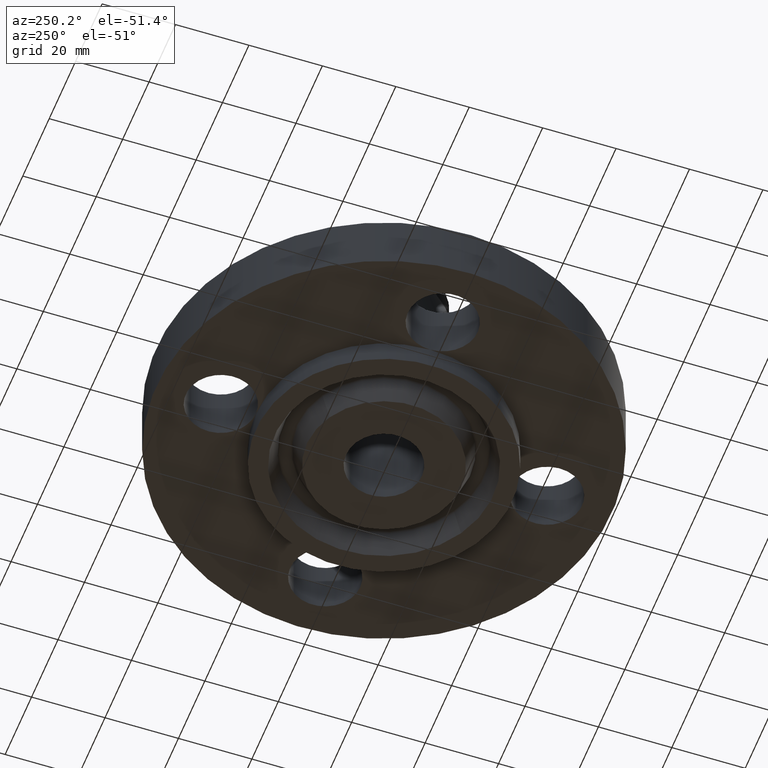
[diagram: clean part render]
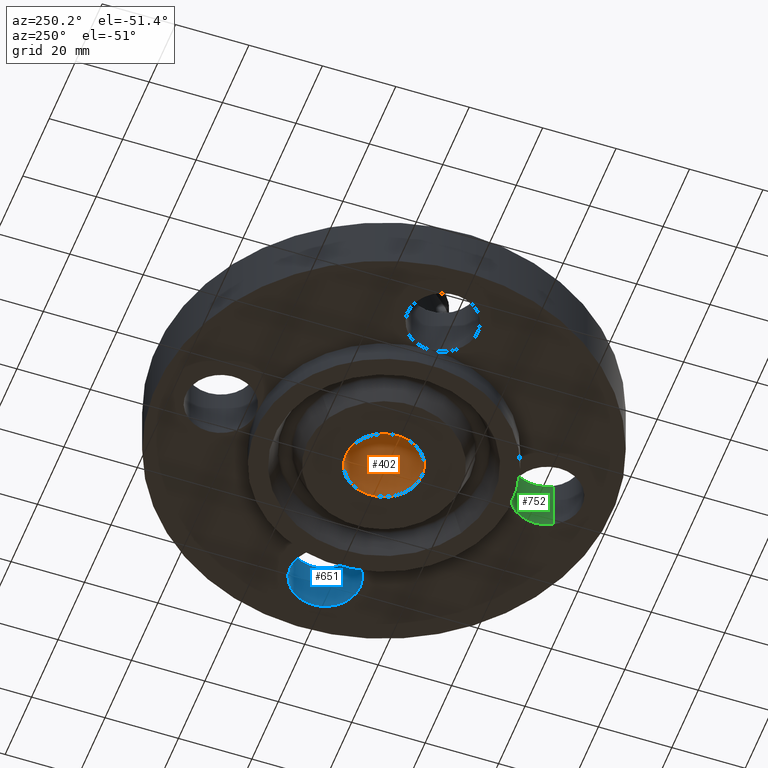
[diagram: same view with three faces highlighted in distinct colors, each labeled with its STEP entity id]
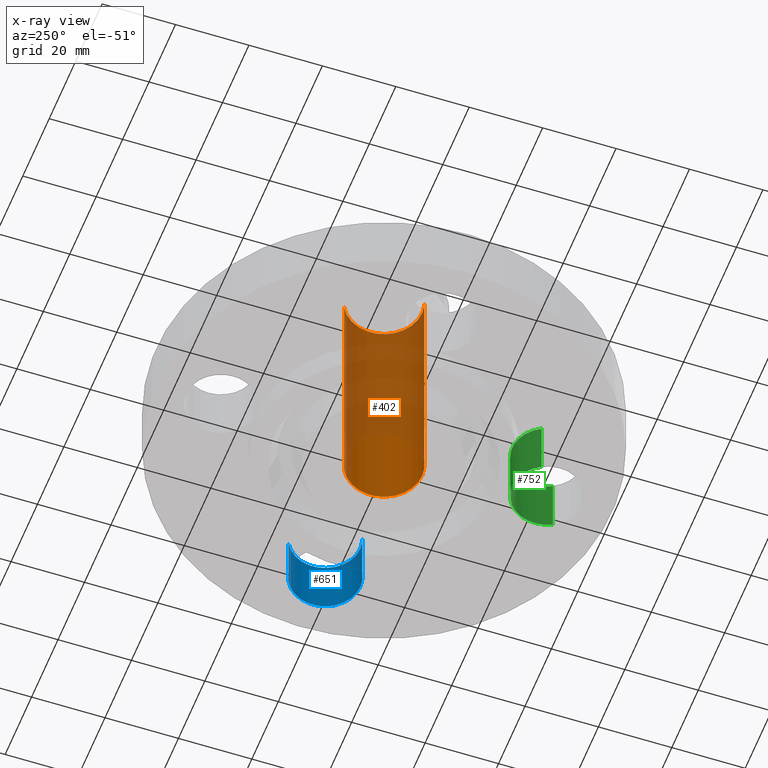
[diagram: x-ray of the same camera — body ghosted, the three highlighted faces saturated]
A machine part, auxiliary view with three faces highlighted in distinct colors.
The next image is the same camera in x-ray (body ghosted, the three faces saturated) — at least one of them is partly hidden behind the body in this view.
Their STEP definitions:

[orange] entity #402 — the highlighted cylindrical surface (partial cylindrical patch) has radius 10.3505 mm, axis along (0, 0, -1).
#366=AXIS2_PLACEMENT_3D('Cylinder Axis2P3D',#363,#364,#365) ;
#370=AXIS2_PLACEMENT_3D('Circle Axis2P3D',#368,#369,$) ;
#386=AXIS2_PLACEMENT_3D('Circle Axis2P3D',#384,#385,$) ;
#363=CARTESIAN_POINT('Axis2P3D Location',(0.,0.,1.065)) ;
#368=CARTESIAN_POINT('Axis2P3D Location',(0.,0.,2.38000000001)) ;
#372=CARTESIAN_POINT('Vertex',(0.195365906982,0.357614893972,2.38000000001)) ;
#374=CARTESIAN_POINT('Vertex',(-0.195365906982,-0.357614893972,2.38000000001)) ;
#377=CARTESIAN_POINT('Line Origine',(0.195365906982,0.357614893972,1.065)) ;
#381=CARTESIAN_POINT('Vertex',(0.195365906982,0.357614893972,-0.250000000001)) ;
#384=CARTESIAN_POINT('Axis2P3D Location',(0.,0.,-0.250000000001)) ;
#388=CARTESIAN_POINT('Vertex',(-0.195365906982,-0.357614893972,-0.250000000001)) ;
#391=CARTESIAN_POINT('Line Origine',(-0.195365906982,-0.357614893972,1.065)) ;
#364=DIRECTION('Axis2P3D Direction',(0.,0.,-0.0393700787402)) ;
#365=DIRECTION('Axis2P3D XDirection',(-0.0188750212049,-0.0345504945626,0.)) ;
#369=DIRECTION('Axis2P3D Direction',(0.,0.,-0.0393700787402)) ;
#378=DIRECTION('Vector Direction',(0.,0.,-0.0393700787402)) ;
#385=DIRECTION('Axis2P3D Direction',(0.,0.,-0.0393700787402)) ;
#392=DIRECTION('Vector Direction',(0.,0.,-0.0393700787402)) ;
#379=VECTOR('Line Direction',#378,0.0393700787402) ;
#393=VECTOR('Line Direction',#392,0.0393700787402) ;
#397=ORIENTED_EDGE('',*,*,#376,.F.) ;
#398=ORIENTED_EDGE('',*,*,#383,.T.) ;
#399=ORIENTED_EDGE('',*,*,#390,.T.) ;
#400=ORIENTED_EDGE('',*,*,#395,.F.) ;
#402=ADVANCED_FACE('PartBody',(#401),#367,.F.) ;
#371=CIRCLE('generated circle',#370,0.407500000002) ;
#387=CIRCLE('generated circle',#386,0.407500000002) ;
#367=CYLINDRICAL_SURFACE('generated cylinder',#366,0.407500000002) ;
#376=EDGE_CURVE('',#373,#375,#371,.T.) ;
#383=EDGE_CURVE('',#373,#382,#380,.T.) ;
#390=EDGE_CURVE('',#382,#389,#387,.T.) ;
#395=EDGE_CURVE('',#375,#389,#394,.T.) ;
#396=EDGE_LOOP('',(#397,#398,#399,#400)) ;
#401=FACE_OUTER_BOUND('',#396,.T.) ;
#380=LINE('Line',#377,#379) ;
#394=LINE('Line',#391,#393) ;
#373=VERTEX_POINT('',#372) ;
#375=VERTEX_POINT('',#374) ;
#382=VERTEX_POINT('',#381) ;
#389=VERTEX_POINT('',#388) ;

[blue] entity #651 — the highlighted cylindrical surface (partial cylindrical patch) has radius 9.525 mm, axis along (0, -0, -1).
#571=AXIS2_PLACEMENT_3D('Circle Axis2P3D',#569,#570,$) ;
#624=AXIS2_PLACEMENT_3D('Cylinder Axis2P3D',#621,#622,#623) ;
#642=AXIS2_PLACEMENT_3D('Circle Axis2P3D',#640,#641,$) ;
#566=CARTESIAN_POINT('Vertex',(1.57021542303,-0.32909346071,0.)) ;
#569=CARTESIAN_POINT('Axis2P3D Location',(1.75000000001,-2.79741234551E-016,0.)) ;
#573=CARTESIAN_POINT('Vertex',(1.92978457698,0.32909346071,0.)) ;
#621=CARTESIAN_POINT('Axis2P3D Location',(1.75000000001,-1.72584639625E-016,0.616062992128)) ;
#626=CARTESIAN_POINT('Line Origine',(1.92978457698,0.32909346071,0.310000000001)) ;
#630=CARTESIAN_POINT('Vertex',(1.92978457698,0.32909346071,0.620000000002)) ;
#633=CARTESIAN_POINT('Line Origine',(1.57021542303,-0.32909346071,0.310000000001)) ;
#637=CARTESIAN_POINT('Vertex',(1.57021542303,-0.32909346071,0.620000000002)) ;
#640=CARTESIAN_POINT('Axis2P3D Location',(1.75000000001,-1.72584639625E-016,0.620000000002)) ;
#570=DIRECTION('Axis2P3D Direction',(0.,0.,-0.0393700787402)) ;
#622=DIRECTION('Axis2P3D Direction',(0.,-0.,-0.0393700787402)) ;
#623=DIRECTION('Axis2P3D XDirection',(-0.0188750212049,-0.0345504945626,0.)) ;
#627=DIRECTION('Vector Direction',(0.,0.,-0.0393700787402)) ;
#634=DIRECTION('Vector Direction',(0.,0.,-0.0393700787402)) ;
#641=DIRECTION('Axis2P3D Direction',(0.,-0.,-0.0393700787402)) ;
#628=VECTOR('Line Direction',#627,0.0393700787402) ;
#635=VECTOR('Line Direction',#634,0.0393700787402) ;
#646=ORIENTED_EDGE('',*,*,#632,.F.) ;
#647=ORIENTED_EDGE('',*,*,#575,.T.) ;
#648=ORIENTED_EDGE('',*,*,#639,.T.) ;
#649=ORIENTED_EDGE('',*,*,#644,.F.) ;
#651=ADVANCED_FACE('PartBody',(#650),#625,.F.) ;
#572=CIRCLE('generated circle',#571,0.375000000001) ;
#643=CIRCLE('generated circle',#642,0.375000000001) ;
#625=CYLINDRICAL_SURFACE('generated cylinder',#624,0.375000000001) ;
#575=EDGE_CURVE('',#574,#567,#572,.T.) ;
#632=EDGE_CURVE('',#574,#631,#629,.F.) ;
#639=EDGE_CURVE('',#567,#638,#636,.F.) ;
#644=EDGE_CURVE('',#631,#638,#643,.T.) ;
#645=EDGE_LOOP('',(#646,#647,#648,#649)) ;
#650=FACE_OUTER_BOUND('',#645,.T.) ;
#629=LINE('Line',#626,#628) ;
#636=LINE('Line',#633,#635) ;
#567=VERTEX_POINT('',#566) ;
#574=VERTEX_POINT('',#573) ;
#631=VERTEX_POINT('',#630) ;
#638=VERTEX_POINT('',#637) ;

[green] entity #752 — the highlighted cylindrical surface (partial cylindrical patch) has radius 9.525 mm, axis along (-0, 0, -1).
#545=AXIS2_PLACEMENT_3D('Circle Axis2P3D',#543,#544,$) ;
#559=AXIS2_PLACEMENT_3D('Circle Axis2P3D',#557,#558,$) ;
#712=AXIS2_PLACEMENT_3D('Cylinder Axis2P3D',#709,#710,#711) ;
#742=AXIS2_PLACEMENT_3D('Circle Axis2P3D',#740,#741,$) ;
#517=CARTESIAN_POINT('Vertex',(2.02112938519E-016,-1.37500000001,0.)) ;
#543=CARTESIAN_POINT('Axis2P3D Location',(2.70999320971E-016,-1.75000000001,0.)) ;
#547=CARTESIAN_POINT('Vertex',(-0.32909346071,-1.57021542303,0.)) ;
#554=CARTESIAN_POINT('Vertex',(0.32909346071,-1.92978457698,0.)) ;
#557=CARTESIAN_POINT('Axis2P3D Location',(2.70999320971E-016,-1.75000000001,0.)) ;
#709=CARTESIAN_POINT('Axis2P3D Location',(2.14313189852E-016,-1.75000000001,0.616062992128)) ;
#714=CARTESIAN_POINT('Line Origine',(0.32909346071,-1.92978457698,0.310000000001)) ;
#718=CARTESIAN_POINT('Vertex',(0.32909346071,-1.92978457698,0.620000000002)) ;
#721=CARTESIAN_POINT('Line Origine',(-0.32909346071,-1.57021542303,0.310000000001)) ;
#725=CARTESIAN_POINT('Vertex',(-0.32909346071,-1.57021542303,0.620000000002)) ;
#740=CARTESIAN_POINT('Axis2P3D Location',(2.14313189852E-016,-1.75000000001,0.620000000002)) ;
#544=DIRECTION('Axis2P3D Direction',(0.,0.,-0.0393700787402)) ;
#558=DIRECTION('Axis2P3D Direction',(0.,0.,-0.0393700787402)) ;
#710=DIRECTION('Axis2P3D Direction',(-0.,0.,-0.0393700787402)) ;
#711=DIRECTION('Axis2P3D XDirection',(-0.0345504945626,0.0188750212049,0.)) ;
#715=DIRECTION('Vector Direction',(0.,0.,-0.0393700787402)) ;
#722=DIRECTION('Vector Direction',(0.,0.,-0.0393700787402)) ;
#741=DIRECTION('Axis2P3D Direction',(-0.,0.,-0.0393700787402)) ;
#716=VECTOR('Line Direction',#715,0.0393700787402) ;
#723=VECTOR('Line Direction',#722,0.0393700787402) ;
#746=ORIENTED_EDGE('',*,*,#727,.F.) ;
#747=ORIENTED_EDGE('',*,*,#549,.T.) ;
#748=ORIENTED_EDGE('',*,*,#561,.T.) ;
#749=ORIENTED_EDGE('',*,*,#720,.T.) ;
#750=ORIENTED_EDGE('',*,*,#744,.F.) ;
#752=ADVANCED_FACE('PartBody',(#751),#713,.F.) ;
#546=CIRCLE('generated circle',#545,0.375000000001) ;
#560=CIRCLE('generated circle',#559,0.375000000001) ;
#743=CIRCLE('generated circle',#742,0.375000000001) ;
#713=CYLINDRICAL_SURFACE('generated cylinder',#712,0.375000000001) ;
#549=EDGE_CURVE('',#548,#518,#546,.T.) ;
#561=EDGE_CURVE('',#518,#555,#560,.T.) ;
#720=EDGE_CURVE('',#555,#719,#717,.F.) ;
#727=EDGE_CURVE('',#548,#726,#724,.F.) ;
#744=EDGE_CURVE('',#726,#719,#743,.T.) ;
#745=EDGE_LOOP('',(#746,#747,#748,#749,#750)) ;
#751=FACE_OUTER_BOUND('',#745,.T.) ;
#717=LINE('Line',#714,#716) ;
#724=LINE('Line',#721,#723) ;
#518=VERTEX_POINT('',#517) ;
#548=VERTEX_POINT('',#547) ;
#555=VERTEX_POINT('',#554) ;
#719=VERTEX_POINT('',#718) ;
#726=VERTEX_POINT('',#725) ;